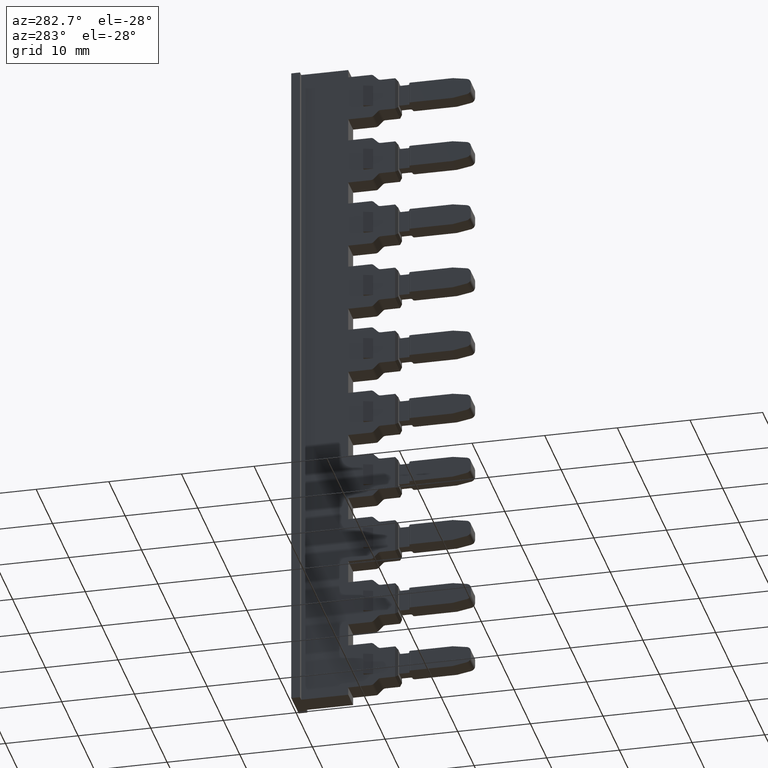
[diagram: clean part render]
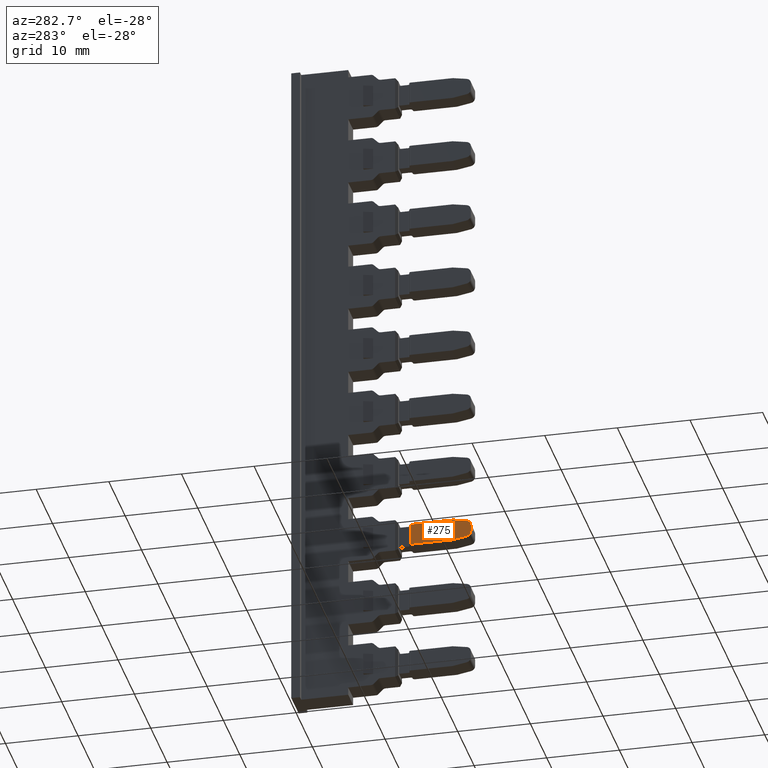
[diagram: same view with one face highlighted and labeled with its STEP entity id]
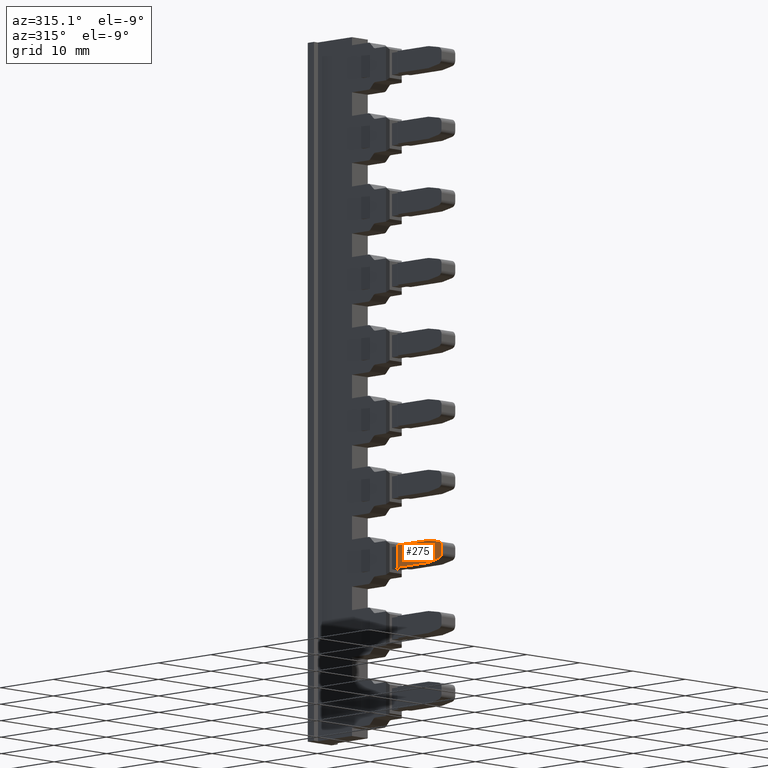
[diagram: same view with one face highlighted and labeled with its STEP entity id]
A machine part, auxiliary view. The second image highlights one B-rep face of the part: STEP entity #275.
A second angle (auxiliary view) of the same face is appended — the face is thin or edge-on in the first view.
In plain terms, the highlighted planar face has unit normal (1, 0, 0).
Its self-contained STEP definition (entity closure, byte-faithful):
#275 = ADVANCED_FACE ( 'NONE', ( #8395 ), #8369, .F. ) ;
#749 = EDGE_CURVE ( 'NONE', #9686, #9672, #7277, .T. ) ;
#784 = EDGE_CURVE ( 'NONE', #9664, #9653, #3789, .T. ) ;
#788 = EDGE_CURVE ( 'NONE', #9707, #9672, #3810, .T. ) ;
#815 = EDGE_CURVE ( 'NONE', #9657, #9686, #3893, .T. ) ;
#826 = EDGE_CURVE ( 'NONE', #9707, #9664, #7380, .T. ) ;
#832 = EDGE_CURVE ( 'NONE', #9653, #9691, #3947, .T. ) ;
#914 = EDGE_CURVE ( 'NONE', #9640, #9657, #12649, .T. ) ;
#920 = EDGE_CURVE ( 'NONE', #9691, #9640, #12681, .T. ) ;
#2831 = ORIENTED_EDGE ( 'NONE', *, *, #920, .F. ) ;
#2859 = ORIENTED_EDGE ( 'NONE', *, *, #788, .T. ) ;
#2866 = ORIENTED_EDGE ( 'NONE', *, *, #832, .F. ) ;
#2871 = ORIENTED_EDGE ( 'NONE', *, *, #784, .F. ) ;
#2887 = ORIENTED_EDGE ( 'NONE', *, *, #815, .F. ) ;
#2899 = ORIENTED_EDGE ( 'NONE', *, *, #826, .F. ) ;
#2903 = ORIENTED_EDGE ( 'NONE', *, *, #914, .F. ) ;
#2923 = ORIENTED_EDGE ( 'NONE', *, *, #749, .F. ) ;
#3706 = DIRECTION ( 'NONE',  ( 1.000000000000000000, 2.643655590711540000E-014, 7.193572994224081300E-015 ) ) ;
#3715 = CARTESIAN_POINT ( 'NONE',  ( 109.4251171002648300, 226.5069065328588600, -15.62155057219964000 ) ) ;
#3718 = DIRECTION ( 'NONE',  ( 1.982541115402047700E-014, -1.000000000000000000, 0.0000000000000000000 ) ) ;
#3772 = CARTESIAN_POINT ( 'NONE',  ( 109.4251171002648700, 225.8069065328588700, -15.62155057219956300 ) ) ;
#3789 = LINE ( 'NONE', #3809, #7288 ) ;
#3791 = DIRECTION ( 'NONE',  ( -8.534938901464416100E-014, 0.9848077530122113500, -0.1736481776669117900 ) ) ;
#3803 = DIRECTION ( 'NONE',  ( -1.027851262480033000E-041, 3.887992316742691900E-028, 1.000000000000000000 ) ) ;
#3809 = CARTESIAN_POINT ( 'NONE',  ( 109.4251171002648400, 226.3853528084917700, -17.25454161211734000 ) ) ;
#3810 = LINE ( 'NONE', #3772, #7335 ) ;
#3862 = CARTESIAN_POINT ( 'NONE',  ( 109.4251171002646400, 228.3069065328597000, -14.59336337860406900 ) ) ;
#3889 = DIRECTION ( 'NONE',  ( 9.246183809914414100E-014, -0.9848077530121941400, -0.1736481776670100700 ) ) ;
#3893 = LINE ( 'NONE', #3862, #7376 ) ;
#3913 = CARTESIAN_POINT ( 'NONE',  ( 109.4251171002648600, 226.5069065328588600, -16.56517618500882700 ) ) ;
#3921 = CARTESIAN_POINT ( 'NONE',  ( 109.4251171002641300, 234.7827890380841300, -17.59336337860402500 ) ) ;
#3922 = DIRECTION ( 'NONE',  ( -8.429940185974499800E-014, 1.000000000000000000, 0.0000000000000000000 ) ) ;
#3926 = DIRECTION ( 'NONE',  ( 1.982541115402047700E-014, -1.000000000000000000, 0.0000000000000000000 ) ) ;
#3942 = DIRECTION ( 'NONE',  ( 1.000000000000000000, 2.643655590711540000E-014, 7.193572994224081300E-015 ) ) ;
#3947 = LINE ( 'NONE', #3921, #7381 ) ;
#4861 = CARTESIAN_POINT ( 'NONE',  ( 109.4251171002648600, 226.3853528084919200, -17.25454161211736100 ) ) ;
#4869 = CARTESIAN_POINT ( 'NONE',  ( 109.4251171002641600, 234.0815789080011800, -14.59336337860406400 ) ) ;
#4876 = CARTESIAN_POINT ( 'NONE',  ( 109.4251171002646400, 228.3069065328599000, -14.59336337860413800 ) ) ;
#4893 = CARTESIAN_POINT ( 'NONE',  ( 109.4251171002648600, 225.8069065328588700, -15.62155057219966100 ) ) ;
#4897 = CARTESIAN_POINT ( 'NONE',  ( 109.4251171002646700, 228.3069065328586800, -17.59336337860396800 ) ) ;
#4935 = CARTESIAN_POINT ( 'NONE',  ( 109.4251171002648300, 226.3853528084920900, -14.93218514509107900 ) ) ;
#4947 = CARTESIAN_POINT ( 'NONE',  ( 109.4251171002641900, 234.0815789080011800, -17.59336337860402500 ) ) ;
#4976 = CARTESIAN_POINT ( 'NONE',  ( 109.4251171002648700, 225.8069065328588700, -16.56517618500882000 ) ) ;
#7230 = AXIS2_PLACEMENT_3D ( 'NONE', #3715, #3706, #3718 ) ;
#7277 = CIRCLE ( 'NONE', #7230, 0.7000000000000061700 ) ;
#7288 = VECTOR ( 'NONE', #3791, 1000.000000000000100 ) ;
#7335 = VECTOR ( 'NONE', #3803, 1000.000000000000000 ) ;
#7349 = AXIS2_PLACEMENT_3D ( 'NONE', #3913, #3942, #3926 ) ;
#7376 = VECTOR ( 'NONE', #3889, 999.9999999999998900 ) ;
#7380 = CIRCLE ( 'NONE', #7349, 0.7000000000000061700 ) ;
#7381 = VECTOR ( 'NONE', #3922, 1000.000000000000000 ) ;
#7412 = VECTOR ( 'NONE', #12639, 1000.000000000000000 ) ;
#7485 = VECTOR ( 'NONE', #12655, 1000.000000000000000 ) ;
#7935 = AXIS2_PLACEMENT_3D ( 'NONE', #8353, #8357, #8381 ) ;
#8353 = CARTESIAN_POINT ( 'NONE',  ( 109.4251171002642900, 234.7827890380841300, -38.76247400794266400 ) ) ;
#8357 = DIRECTION ( 'NONE',  ( 1.000000000000000000, 8.429940185974499800E-014, 7.193572994222956300E-015 ) ) ;
#8369 = PLANE ( 'NONE',  #7935 ) ;
#8381 = DIRECTION ( 'NONE',  ( -8.429940185974499800E-014, 1.000000000000000000, 0.0000000000000000000 ) ) ;
#8395 = FACE_OUTER_BOUND ( 'NONE', #13771, .T. ) ;
#9640 = VERTEX_POINT ( 'NONE', #4869 ) ;
#9653 = VERTEX_POINT ( 'NONE', #4897 ) ;
#9657 = VERTEX_POINT ( 'NONE', #4876 ) ;
#9664 = VERTEX_POINT ( 'NONE', #4861 ) ;
#9672 = VERTEX_POINT ( 'NONE', #4893 ) ;
#9686 = VERTEX_POINT ( 'NONE', #4935 ) ;
#9691 = VERTEX_POINT ( 'NONE', #4947 ) ;
#9707 = VERTEX_POINT ( 'NONE', #4976 ) ;
#12639 = DIRECTION ( 'NONE',  ( 8.429940185974499800E-014, -1.000000000000000000, -0.0000000000000000000 ) ) ;
#12641 = CARTESIAN_POINT ( 'NONE',  ( 109.4251171002643400, 234.0815789080011800, -38.76247400794266400 ) ) ;
#12649 = LINE ( 'NONE', #12664, #7412 ) ;
#12655 = DIRECTION ( 'NONE',  ( -7.193572994222956300E-015, 5.441398086522723700E-029, 1.000000000000000000 ) ) ;
#12664 = CARTESIAN_POINT ( 'NONE',  ( 109.4251171002641000, 234.7827890380841300, -14.59336337860406900 ) ) ;
#12681 = LINE ( 'NONE', #12641, #7485 ) ;
#13771 = EDGE_LOOP ( 'NONE', ( #2831, #2866, #2871, #2899, #2859, #2923, #2887, #2903 ) ) ;